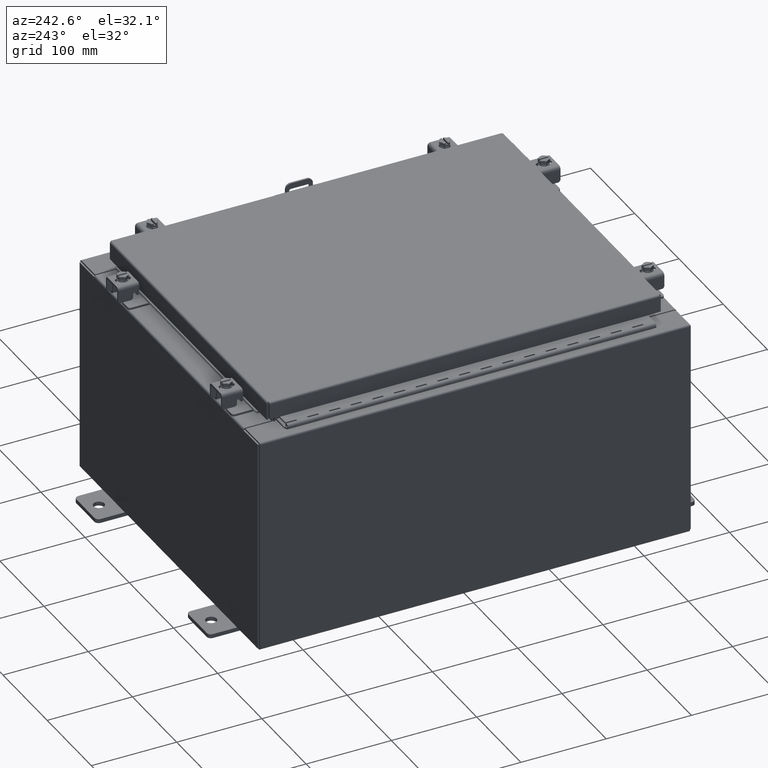
[diagram: clean part render]
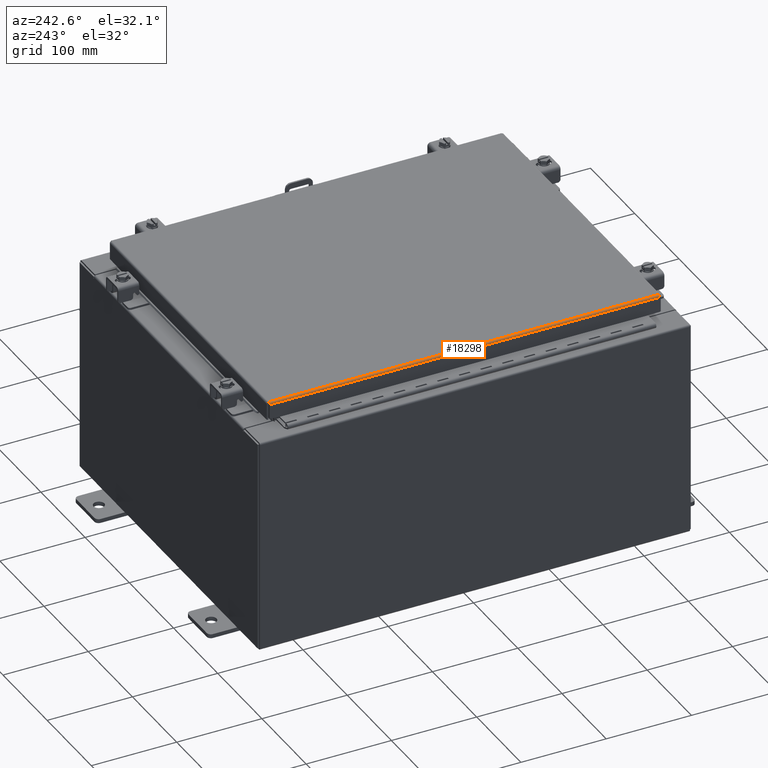
[diagram: same view with one face highlighted and labeled with its STEP entity id]
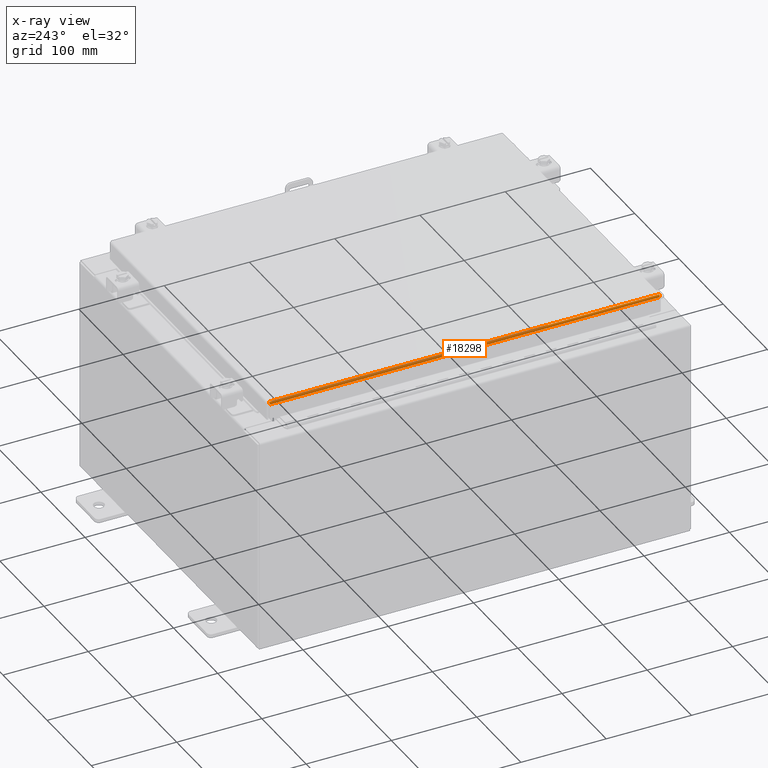
[diagram: x-ray of the same camera — body ghosted, the highlighted face saturated]
A machine part, auxiliary view. The second image highlights one B-rep face of the part: STEP entity #18298.
The next image is the same camera in x-ray: the body ghosted, the highlighted face saturated — about 0% of this face is hidden behind the body in this view.
In plain terms, the highlighted cylindrical surface (edge-blend (fillet) strip) has radius 2.2276 mm, axis along (0, 1, 0).
Its self-contained STEP definition (entity closure, byte-faithful):
#458 = VERTEX_POINT ( 'NONE', #25620 ) ;
#681 = CARTESIAN_POINT ( 'NONE',  ( -7.034467384578525700, -9.005919288125420900, -0.01106893374133176100 ) ) ;
#1794 = LINE ( 'NONE', #4977, #25281 ) ;
#2501 = EDGE_CURVE ( 'NONE', #19055, #458, #21324, .T. ) ;
#2872 = CARTESIAN_POINT ( 'NONE',  ( -7.001779903154991700, -9.006204822031353500, -2.043883832173860400E-016 ) ) ;
#2962 = CARTESIAN_POINT ( 'NONE',  ( -7.060430782078317000, -9.005633754219486400, -0.03380425265820009900 ) ) ;
#3378 = EDGE_CURVE ( 'NONE', #15695, #19421, #16028, .T. ) ;
#3643 = CARTESIAN_POINT ( 'NONE',  ( -7.077999999999998500, 9.005253042344914900, -0.07622009684500732900 ) ) ;
#4977 = CARTESIAN_POINT ( 'NONE',  ( -7.077999999999998500, -9.093999999999999400, -0.08770000000000004200 ) ) ;
#5262 = CARTESIAN_POINT ( 'NONE',  ( -7.075717403743809100, -9.005348220313557300, -0.06474471054169118900 ) ) ;
#5939 = CARTESIAN_POINT ( 'NONE',  ( -7.077999999999998500, 9.005157864376270600, -0.08770000000000004200 ) ) ;
#7569 = CARTESIAN_POINT ( 'NONE',  ( -7.077999999999998500, -9.005157864376265300, -0.08770000000000007000 ) ) ;
#7893 = VECTOR ( 'NONE', #11834, 39.37007874015748100 ) ;
#8253 = CARTESIAN_POINT ( 'NONE',  ( -7.060430782078318800, 9.005633754219491700, -0.03380425265820009200 ) ) ;
#9753 = CARTESIAN_POINT ( 'NONE',  ( -6.990299999999997700, -9.006299999999997800, -2.048885995248197400E-016 ) ) ;
#9806 = CARTESIAN_POINT ( 'NONE',  ( -6.990299999999997700, -9.006299999999997800, -2.048885995248197400E-016 ) ) ;
#10516 = CARTESIAN_POINT ( 'NONE',  ( -7.034467384578526600, 9.005919288125424400, -0.01106893374133176100 ) ) ;
#10638 = DIRECTION ( 'NONE',  ( -0.0000000000000000000, 1.000000000000000000, -0.0000000000000000000 ) ) ;
#11211 = AXIS2_PLACEMENT_3D ( 'NONE', #15120, #10638, #26530 ) ;
#11256 = FACE_OUTER_BOUND ( 'NONE', #19362, .T. ) ;
#11834 = DIRECTION ( 'NONE',  ( 0.0000000000000000000, -1.000000000000000000, 0.0000000000000000000 ) ) ;
#12736 = ORIENTED_EDGE ( 'NONE', *, *, #3378, .F. ) ;
#12810 = CARTESIAN_POINT ( 'NONE',  ( -7.001779903154991700, 9.006204822031355300, -2.037547758946368100E-016 ) ) ;
#14338 = CARTESIAN_POINT ( 'NONE',  ( -7.013255289458308900, -9.006109644062711100, -0.002282596256188924700 ) ) ;
#15120 = CARTESIAN_POINT ( 'NONE',  ( -6.990299999999997700, 9.006300000000001300, -0.08770000000000030500 ) ) ;
#15229 = CARTESIAN_POINT ( 'NONE',  ( -7.077999999999998500, 9.005157864376270600, -0.08770000000000004200 ) ) ;
#15695 = VERTEX_POINT ( 'NONE', #15229 ) ;
#16028 = B_SPLINE_CURVE_WITH_KNOTS ( 'NONE', 3,
 ( #5939, #3643, #17266, #21861, #8253, #24127, #10516, #26411, #12810, #28718 ),
 .UNSPECIFIED., .F., .F.,
 ( 4, 2, 2, 2, 4 ),
 ( 0.0000000000000000000, 0.2500000000000000000, 0.5000000000000000000, 0.7500000000000000000, 1.000000000000000000 ),
 .UNSPECIFIED. ) ;
#16597 = CYLINDRICAL_SURFACE ( 'NONE', #11211, 0.08770000000000026400 ) ;
#16604 = CARTESIAN_POINT ( 'NONE',  ( -7.044195747341798400, -9.005824110156778400, -0.01756921792167976500 ) ) ;
#17266 = CARTESIAN_POINT ( 'NONE',  ( -7.075717403743809100, 9.005348220313560900, -0.06474471054169118900 ) ) ;
#17903 = CARTESIAN_POINT ( 'NONE',  ( -6.990299999999997700, 9.006300000000001300, -2.048885995248197400E-016 ) ) ;
#18298 = ADVANCED_FACE ( 'NONE', ( #11256 ), #16597, .T. ) ;
#18710 = DIRECTION ( 'NONE',  ( 3.645815397208356400E-031, -1.000000000000000000, -1.074717912135910000E-045 ) ) ;
#18883 = CARTESIAN_POINT ( 'NONE',  ( -7.066931066258665500, -9.005538576250844000, -0.04353261542147222900 ) ) ;
#18985 = ORIENTED_EDGE ( 'NONE', *, *, #28002, .T. ) ;
#19055 = VERTEX_POINT ( 'NONE', #9806 ) ;
#19268 = LINE ( 'NONE', #25436, #7893 ) ;
#19362 = EDGE_LOOP ( 'NONE', ( #25054, #12736, #18985, #27030 ) ) ;
#19421 = VERTEX_POINT ( 'NONE', #17903 ) ;
#21189 = CARTESIAN_POINT ( 'NONE',  ( -7.077999999999998500, -9.005253042344911300, -0.07622009684500735700 ) ) ;
#21324 = B_SPLINE_CURVE_WITH_KNOTS ( 'NONE', 3,
 ( #9753, #2872, #14338, #681, #16604, #2962, #18883, #5262, #21189, #7569 ),
 .UNSPECIFIED., .F., .F.,
 ( 4, 2, 2, 2, 4 ),
 ( 0.0000000000000000000, 0.2500000000000000000, 0.5000000000000000000, 0.7500000000000000000, 1.000000000000000000 ),
 .UNSPECIFIED. ) ;
#21861 = CARTESIAN_POINT ( 'NONE',  ( -7.066931066258662900, 9.005538576250845800, -0.04353261542147222200 ) ) ;
#24127 = CARTESIAN_POINT ( 'NONE',  ( -7.044195747341797500, 9.005824110156780200, -0.01756921792167976500 ) ) ;
#25054 = ORIENTED_EDGE ( 'NONE', *, *, #26716, .F. ) ;
#25281 = VECTOR ( 'NONE', #18710, 39.37007874015748100 ) ;
#25436 = CARTESIAN_POINT ( 'NONE',  ( -6.990299999999997700, 9.006300000000001300, -2.048885995248197400E-016 ) ) ;
#25620 = CARTESIAN_POINT ( 'NONE',  ( -7.077999999999998500, -9.005157864376265300, -0.08770000000000007000 ) ) ;
#26411 = CARTESIAN_POINT ( 'NONE',  ( -7.013255289458305300, 9.006109644062711100, -0.002282596256188923800 ) ) ;
#26530 = DIRECTION ( 'NONE',  ( -1.000000000000000000, 0.0000000000000000000, 3.114992011019675100E-015 ) ) ;
#26716 = EDGE_CURVE ( 'NONE', #19421, #19055, #19268, .T. ) ;
#27030 = ORIENTED_EDGE ( 'NONE', *, *, #2501, .F. ) ;
#28002 = EDGE_CURVE ( 'NONE', #15695, #458, #1794, .T. ) ;
#28718 = CARTESIAN_POINT ( 'NONE',  ( -6.990299999999997700, 9.006300000000001300, -2.048885995248197400E-016 ) ) ;